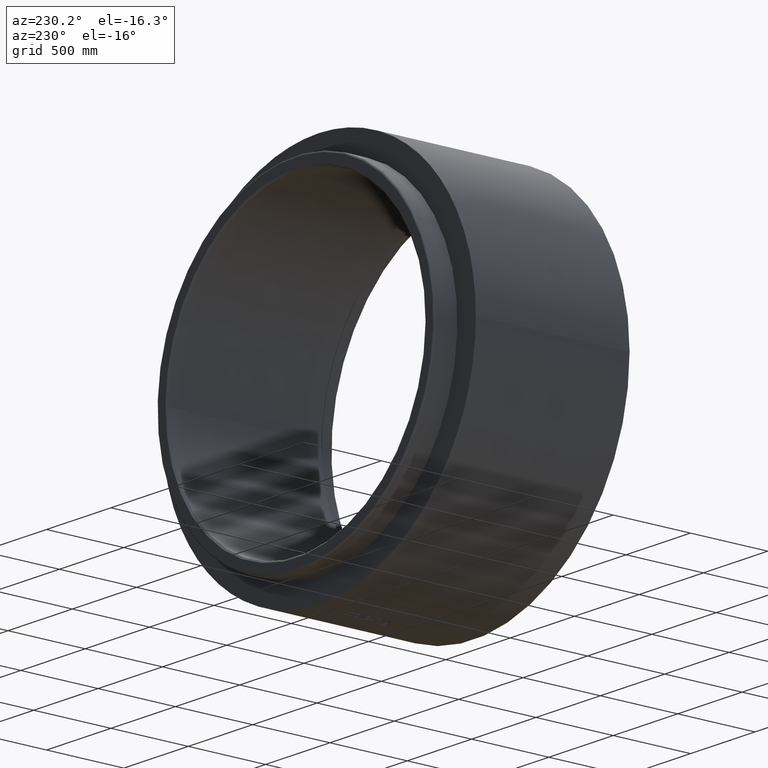
[diagram: clean part render]
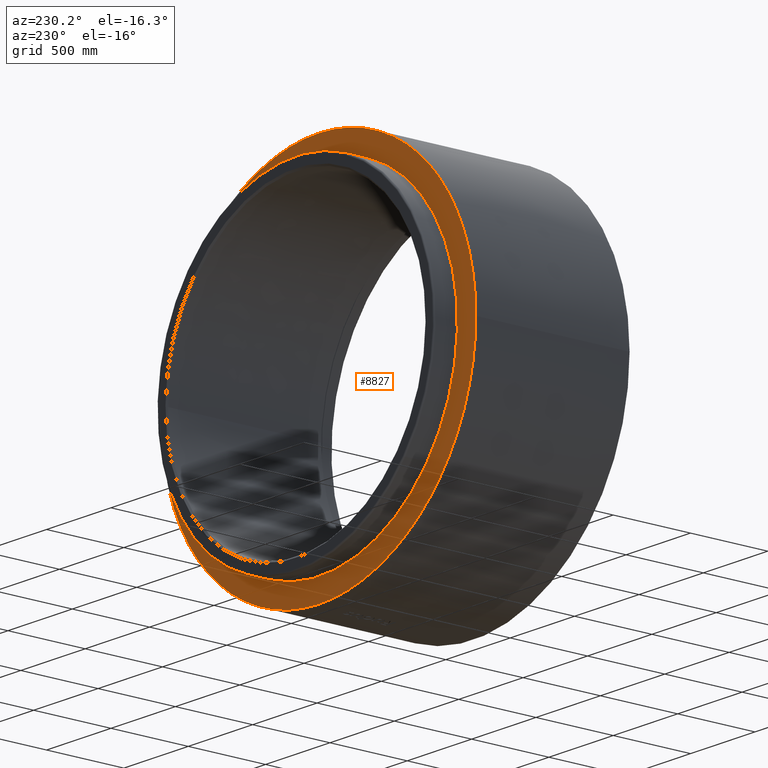
[diagram: same view with one face highlighted and labeled with its STEP entity id]
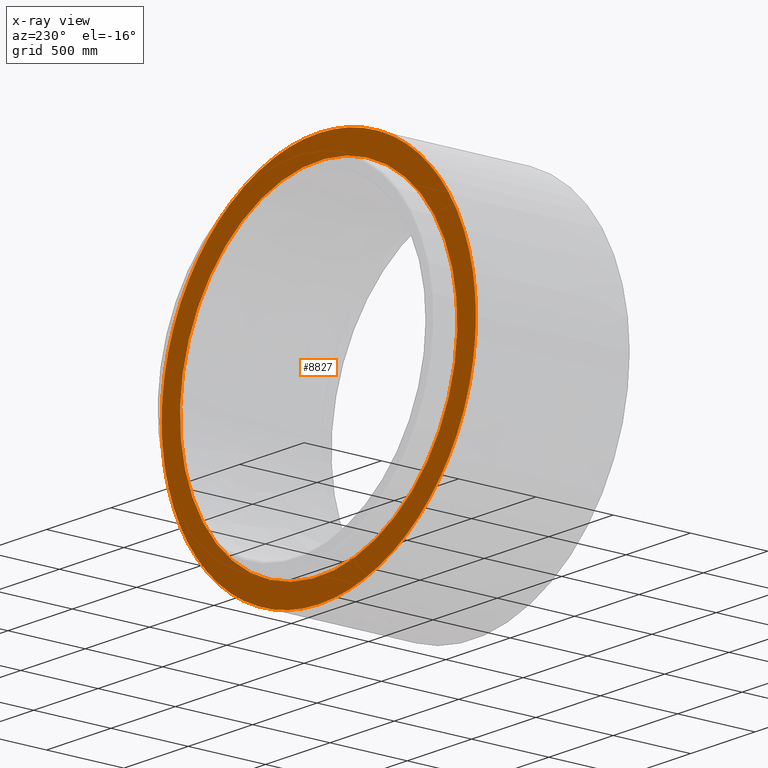
[diagram: x-ray of the same camera — body ghosted, the highlighted face saturated]
A machine part, auxiliary view. The second image highlights one B-rep face of the part: STEP entity #8827.
The next image is the same camera in x-ray: the body ghosted, the highlighted face saturated — about 0% of this face is hidden behind the body in this view.
In plain terms, the highlighted planar face has unit normal (0, 1, 0).
Its self-contained STEP definition (entity closure, byte-faithful):
#48 = CARTESIAN_POINT ( 'NONE',  ( -395.8754158492759530, 1153.987372525587034, 849.9999999999996589 ) ) ;
#83 = EDGE_CURVE ( 'NONE', #19981, #12855, #16625, .T. ) ;
#109 = VERTEX_POINT ( 'NONE', #5220 ) ;
#136 = CIRCLE ( 'NONE', #18513, 1220.000000000000000 ) ;
#140 = VERTEX_POINT ( 'NONE', #21071 ) ;
#276 = CARTESIAN_POINT ( 'NONE',  ( -343.8634925574635304, 1170.537440018978259, 850.0000000000001137 ) ) ;
#337 = B_SPLINE_CURVE_WITH_KNOTS ( 'NONE', 3,
 ( #17559, #20778, #14001, #5262, #20891, #19509, #7097, #5150, #1593, #14115, #15612, #21114, #3317, #10311, #12384, #19395 ),
 .UNSPECIFIED., .F., .F.,
 ( 4, 2, 2, 2, 2, 2, 2, 4 ),
 ( 3.211195586637952903, 3.243659481103999376, 3.259891428337022834, 3.268007401953534341, 3.276123375570045848, 3.341051164502137460, 3.405978953434229073, 3.470906742366320685 ),
 .UNSPECIFIED. ) ;
#374 = AXIS2_PLACEMENT_3D ( 'NONE', #19717, #18105, #2597 ) ;
#398 = CARTESIAN_POINT ( 'NONE',  ( -1081.203955377469583, -565.5653435448837172, 849.9999999999998863 ) ) ;
#420 = ORIENTED_EDGE ( 'NONE', *, *, #21334, .F. ) ;
#482 = AXIS2_PLACEMENT_3D ( 'NONE', #22455, #5214, #8211 ) ;
#542 = CARTESIAN_POINT ( 'NONE',  ( 0.0000000000000000000, 0.0000000000000000000, 850.0000000000000000 ) ) ;
#558 = CARTESIAN_POINT ( 'NONE',  ( -486.9908703716928926, -1118.796647094154196, 850.0000000000001137 ) ) ;
#695 = EDGE_CURVE ( 'NONE', #9754, #11871, #21005, .T. ) ;
#916 = VERTEX_POINT ( 'NONE', #11654 ) ;
#1001 = DIRECTION ( 'NONE',  ( -0.7822983126862211867, 0.6229039652854132525, 0.0000000000000000000 ) ) ;
#1063 = CARTESIAN_POINT ( 'NONE',  ( -1070.843168858291619, -584.5467540834797546, 850.0000000000001137 ) ) ;
#1066 = CARTESIAN_POINT ( 'NONE',  ( 343.8634925957753126, -1170.537440007723490, 850.0000000000001137 ) ) ;
#1395 = CARTESIAN_POINT ( 'NONE',  ( 584.5467540815928942, -1070.843168859321622, 850.0000000000001137 ) ) ;
#1432 = CARTESIAN_POINT ( 'NONE',  ( 385.4940052209549322, 1157.545166577661348, 850.0000000000000000 ) ) ;
#1593 = CARTESIAN_POINT ( 'NONE',  ( 1099.528587927771468, -528.6214959908409128, 850.0000000000000000 ) ) ;
#1652 = CARTESIAN_POINT ( 'NONE',  ( 0.0000000000000000000, 0.0000000000000000000, 850.0000000000000000 ) ) ;
#2006 = CARTESIAN_POINT ( 'NONE',  ( -1164.243732215775026, -364.7668868244443274, 849.9999999999997726 ) ) ;
#2088 = CIRCLE ( 'NONE', #9799, 1077.000000000000227 ) ;
#2090 = CARTESIAN_POINT ( 'NONE',  ( 1070.843168970104671, -584.5467538786475643, 850.0000000000001137 ) ) ;
#2258 = CARTESIAN_POINT ( 'NONE',  ( 1170.537440020091708, 343.8634925536730975, 850.0000000000001137 ) ) ;
#2273 = B_SPLINE_CURVE_WITH_KNOTS ( 'NONE', 3,
 ( #19834, #14558, #6052, #12714, #11101, #18002, #20069, #9260, #9032 ),
 .UNSPECIFIED., .F., .F.,
 ( 4, 2, 1, 2, 4 ),
 ( 7.028952977437310068, 7.094146350864786399, 7.159339724292262730, 7.224533097719739061, 7.289726471147215392 ),
 .UNSPECIFIED. ) ;
#2597 = DIRECTION ( 'NONE',  ( 1.000000000000000000, 0.0000000000000000000, 0.0000000000000000000 ) ) ;
#2606 = CARTESIAN_POINT ( 'NONE',  ( 1091.228714113956357, 545.9760882551044006, 850.0000000000002274 ) ) ;
#2702 = VERTEX_POINT ( 'NONE', #6711 ) ;
#2792 = DIRECTION ( 'NONE',  ( -0.0000000000000000000, -0.0000000000000000000, -1.000000000000000000 ) ) ;
#2950 = EDGE_CURVE ( 'NONE', #4442, #18491, #10368, .T. ) ;
#2986 = EDGE_CURVE ( 'NONE', #15515, #10251, #15162, .T. ) ;
#2996 = CARTESIAN_POINT ( 'NONE',  ( 2.220446049250313081E-13, 1220.000000000000000, 850.0000000000001137 ) ) ;
#3034 = CARTESIAN_POINT ( 'NONE',  ( -1170.537440015501943, -343.8634925692969659, 850.0000000000001137 ) ) ;
#3055 = CARTESIAN_POINT ( 'NONE',  ( 0.0000000000000000000, 0.0000000000000000000, 850.0000000000000000 ) ) ;
#3115 = CARTESIAN_POINT ( 'NONE',  ( 546.0418383356737877, -1091.199003939527984, 850.0000000000003411 ) ) ;
#3154 = CARTESIAN_POINT ( 'NONE',  ( 364.7162013462530012, 1164.259346336537646, 850.0000000000001137 ) ) ;
#3199 = AXIS2_PLACEMENT_3D ( 'NONE', #12087, #3241, #22654 ) ;
#3241 = DIRECTION ( 'NONE',  ( -0.0000000000000000000, -0.0000000000000000000, -1.000000000000000000 ) ) ;
#3317 = CARTESIAN_POINT ( 'NONE',  ( 1143.400454152125121, -426.0275104759683700, 850.0000000000000000 ) ) ;
#3452 = VERTEX_POINT ( 'NONE', #18415 ) ;
#3737 = DIRECTION ( 'NONE',  ( -0.0000000000000000000, -0.0000000000000000000, -1.000000000000000000 ) ) ;
#3955 = AXIS2_PLACEMENT_3D ( 'NONE', #3055, #22019, #13295 ) ;
#3972 = CARTESIAN_POINT ( 'NONE',  ( -343.8634925574635304, 1170.537440018978259, 850.0000000000001137 ) ) ;
#3979 = CARTESIAN_POINT ( 'NONE',  ( 1170.537440020091708, 343.8634925536730975, 850.0000000000001137 ) ) ;
#4060 = EDGE_CURVE ( 'NONE', #15515, #4442, #14055, .T. ) ;
#4154 = AXIS2_PLACEMENT_3D ( 'NONE', #9385, #13074, #14684 ) ;
#4442 = VERTEX_POINT ( 'NONE', #12252 ) ;
#4563 = DIRECTION ( 'NONE',  ( -0.0000000000000000000, -0.0000000000000000000, -1.000000000000000000 ) ) ;
#4584 = VERTEX_POINT ( 'NONE', #3034 ) ;
#4592 = CARTESIAN_POINT ( 'NONE',  ( -1070.843168876829395, 584.5467540495197909, 850.0000000000001137 ) ) ;
#4607 = CARTESIAN_POINT ( 'NONE',  ( 0.0000000000000000000, 0.0000000000000000000, 850.0000000000000000 ) ) ;
#4664 = DIRECTION ( 'NONE',  ( 0.0000000000000000000, 0.0000000000000000000, -1.000000000000000000 ) ) ;
#4765 = CARTESIAN_POINT ( 'NONE',  ( 584.5467540429940527, 1070.843168880391886, 850.0000000000001137 ) ) ;
#4824 = EDGE_CURVE ( 'NONE', #18596, #7807, #337, .T. ) ;
#5150 = CARTESIAN_POINT ( 'NONE',  ( 1098.339108393015294, -531.0886419547695141, 850.0000000000000000 ) ) ;
#5214 = DIRECTION ( 'NONE',  ( -0.0000000000000000000, -0.0000000000000000000, -1.000000000000000000 ) ) ;
#5220 = CARTESIAN_POINT ( 'NONE',  ( -842.5352827630604224, 670.8675706123901819, 850.0000000000001137 ) ) ;
#5262 = CARTESIAN_POINT ( 'NONE',  ( 1088.631529921142828, -550.7348208264235154, 850.0000000000000000 ) ) ;
#5373 = DIRECTION ( 'NONE',  ( 1.000000000000000000, 0.0000000000000000000, 0.0000000000000000000 ) ) ;
#5391 = VERTEX_POINT ( 'NONE', #8956 ) ;
#5403 = AXIS2_PLACEMENT_3D ( 'NONE', #9825, #4664, #1001 ) ;
#5524 = VERTEX_POINT ( 'NONE', #4592 ) ;
#5554 = CARTESIAN_POINT ( 'NONE',  ( -403.6422295716476469, 1151.293518235846250, 849.9999999999998863 ) ) ;
#5607 = CARTESIAN_POINT ( 'NONE',  ( -343.8634925539323604, -1170.537440020015765, 850.0000000000001137 ) ) ;
#5672 = B_SPLINE_CURVE_WITH_KNOTS ( 'NONE', 3,
 ( #2258, #6051, #9259, #21903, #14557, #18347, #19954, #2606, #11219, #18229 ),
 .UNSPECIFIED., .F., .F.,
 ( 4, 2, 2, 2, 4 ),
 ( 4.165104421393467149, 4.230297292318827118, 4.295490163244187976, 4.360683034169547945, 4.425875905094907914 ),
 .UNSPECIFIED. ) ;
#6051 = CARTESIAN_POINT ( 'NONE',  ( 1164.385501670125223, 364.8029729144413977, 850.0000000000000000 ) ) ;
#6052 = CARTESIAN_POINT ( 'NONE',  ( -1091.223327805774488, 545.9867198710090861, 850.0000000000002274 ) ) ;
#6077 = VERTEX_POINT ( 'NONE', #9333 ) ;
#6154 = CIRCLE ( 'NONE', #5403, 1077.000000000000227 ) ;
#6250 = CIRCLE ( 'NONE', #374, 1220.000000000000000 ) ;
#6299 = VERTEX_POINT ( 'NONE', #2996 ) ;
#6412 = ORIENTED_EDGE ( 'NONE', *, *, #695, .F. ) ;
#6489 = CARTESIAN_POINT ( 'NONE',  ( 343.8634925590142188, 1170.537440018522602, 850.0000000000001137 ) ) ;
#6563 = CARTESIAN_POINT ( 'NONE',  ( 506.4396375887013733, -1109.929830902791764, 850.0000000000000000 ) ) ;
#6600 = CARTESIAN_POINT ( 'NONE',  ( 546.3218657890065515, 1091.053857009613694, 849.9999999999997726 ) ) ;
#6608 = DIRECTION ( 'NONE',  ( 1.000000000000000000, 0.0000000000000000000, 0.0000000000000000000 ) ) ;
#6641 = ORIENTED_EDGE ( 'NONE', *, *, #9751, .F. ) ;
#6655 = DIRECTION ( 'NONE',  ( -0.0000000000000000000, -0.0000000000000000000, -1.000000000000000000 ) ) ;
#6674 = DIRECTION ( 'NONE',  ( -0.0000000000000000000, -0.0000000000000000000, -1.000000000000000000 ) ) ;
#6711 = CARTESIAN_POINT ( 'NONE',  ( -862.6702730475877843, 862.6702730475881253, 850.0000000000001137 ) ) ;
#6745 = ORIENTED_EDGE ( 'NONE', *, *, #4824, .T. ) ;
#6763 = EDGE_CURVE ( 'NONE', #11758, #140, #9519, .T. ) ;
#6787 = CARTESIAN_POINT ( 'NONE',  ( 364.6001881048777022, -1164.445079062128116, 850.0000000000002274 ) ) ;
#6941 = CARTESIAN_POINT ( 'NONE',  ( -546.3204589063923322, 1091.054527738492652, 850.0000000000001137 ) ) ;
#6971 = ORIENTED_EDGE ( 'NONE', *, *, #17016, .T. ) ;
#7056 = CARTESIAN_POINT ( 'NONE',  ( -401.0538848659221003, 1152.197778754652290, 849.9999999999992042 ) ) ;
#7097 = CARTESIAN_POINT ( 'NONE',  ( 1095.942189876141356, -536.0176488782342403, 849.9999999999998863 ) ) ;
#7192 = EDGE_LOOP ( 'NONE', ( #420, #13822, #6971, #19991, #7694, #22379, #6412, #12067, #16428, #14817, #22671, #20944, #12970, #13649, #6745, #9954, #15820, #9026, #15630, #22276, #16877, #6641, #17821, #9628 ) ) ;
#7281 = CARTESIAN_POINT ( 'NONE',  ( -385.5075941440224483, 1157.502097591270740, 849.9999999999998863 ) ) ;
#7308 = ORIENTED_EDGE ( 'NONE', *, *, #13206, .T. ) ;
#7617 = CARTESIAN_POINT ( 'NONE',  ( -6.383782391594650107E-13, -1220.000000000000000, 850.0000000000001137 ) ) ;
#7633 = CARTESIAN_POINT ( 'NONE',  ( -1167.463269152678549, -354.3271117967074133, 849.9999999999998863 ) ) ;
#7678 = CARTESIAN_POINT ( 'NONE',  ( -364.8337780864375759, -1164.376451229721170, 850.0000000000001137 ) ) ;
#7694 = ORIENTED_EDGE ( 'NONE', *, *, #12899, .F. ) ;
#7807 = VERTEX_POINT ( 'NONE', #16280 ) ;
#8060 = CARTESIAN_POINT ( 'NONE',  ( -1153.960595475847640, -395.9819359444106226, 850.0000000000003411 ) ) ;
#8063 = CARTESIAN_POINT ( 'NONE',  ( 516.3770208304157450, -1105.341789822885858, 850.0000000000002274 ) ) ;
#8140 = EDGE_CURVE ( 'NONE', #9856, #18491, #5672, .T. ) ;
#8156 = DIRECTION ( 'NONE',  ( 0.0000000000000000000, 0.0000000000000000000, 1.000000000000000000 ) ) ;
#8199 = DIRECTION ( 'NONE',  ( 1.000000000000000000, 4.440892098500626162E-15, 0.0000000000000000000 ) ) ;
#8211 = DIRECTION ( 'NONE',  ( 1.000000000000000000, -2.664535259100375697E-15, 0.0000000000000000000 ) ) ;
#8373 = FACE_BOUND ( 'NONE', #13318, .T. ) ;
#8488 = DIRECTION ( 'NONE',  ( 1.000000000000000000, 0.0000000000000000000, 0.0000000000000000000 ) ) ;
#8827 = ADVANCED_FACE ( 'NONE', ( #8373, #15397 ), #22506, .T. ) ;
#8845 = DIRECTION ( 'NONE',  ( 1.000000000000000000, 0.0000000000000000000, 0.0000000000000000000 ) ) ;
#8939 = CARTESIAN_POINT ( 'NONE',  ( 842.5352827630603088, -670.8675706123898408, 850.0000000000001137 ) ) ;
#8956 = CARTESIAN_POINT ( 'NONE',  ( -1170.537440018529651, 343.8634925589910267, 850.0000000000001137 ) ) ;
#9005 = CARTESIAN_POINT ( 'NONE',  ( -1109.753773078928589, -507.2578412354933448, 849.9999999999996589 ) ) ;
#9026 = ORIENTED_EDGE ( 'NONE', *, *, #8140, .T. ) ;
#9032 = CARTESIAN_POINT ( 'NONE',  ( -1170.537440018529651, 343.8634925589910267, 850.0000000000001137 ) ) ;
#9149 = EDGE_CURVE ( 'NONE', #9856, #19677, #136, .T. ) ;
#9259 = CARTESIAN_POINT ( 'NONE',  ( 1157.689170855649309, 385.5196019174380240, 849.9999999999998863 ) ) ;
#9260 = CARTESIAN_POINT ( 'NONE',  ( -1164.383575403739314, 364.8095293870022715, 850.0000000000001137 ) ) ;
#9333 = CARTESIAN_POINT ( 'NONE',  ( 343.8634925957753126, -1170.537440007723490, 850.0000000000001137 ) ) ;
#9385 = CARTESIAN_POINT ( 'NONE',  ( 0.0000000000000000000, 0.0000000000000000000, 850.0000000000000000 ) ) ;
#9519 = CIRCLE ( 'NONE', #22357, 1220.000000000000000 ) ;
#9628 = ORIENTED_EDGE ( 'NONE', *, *, #83, .T. ) ;
#9719 = EDGE_CURVE ( 'NONE', #17834, #10633, #18856, .T. ) ;
#9751 = EDGE_CURVE ( 'NONE', #6299, #10251, #16165, .T. ) ;
#9754 = VERTEX_POINT ( 'NONE', #11614 ) ;
#9777 = CARTESIAN_POINT ( 'NONE',  ( 446.3071973183047021, -1135.640103303026308, 850.0000000000003411 ) ) ;
#9799 = AXIS2_PLACEMENT_3D ( 'NONE', #16608, #18097, #20390 ) ;
#9815 = CIRCLE ( 'NONE', #13121, 1220.000000000000000 ) ;
#9825 = CARTESIAN_POINT ( 'NONE',  ( 0.0000000000000000000, 0.0000000000000000000, 850.0000000000001137 ) ) ;
#9848 = EDGE_CURVE ( 'NONE', #18596, #17834, #6250, .T. ) ;
#9856 = VERTEX_POINT ( 'NONE', #3979 ) ;
#9924 = CARTESIAN_POINT ( 'NONE',  ( 426.8686891350942574, 1143.091862888636115, 850.0000000000003411 ) ) ;
#9954 = ORIENTED_EDGE ( 'NONE', *, *, #12394, .F. ) ;
#10134 = DIRECTION ( 'NONE',  ( -0.0000000000000000000, -0.0000000000000000000, -1.000000000000000000 ) ) ;
#10205 = DIRECTION ( 'NONE',  ( -0.0000000000000000000, -0.0000000000000000000, -1.000000000000000000 ) ) ;
#10251 = VERTEX_POINT ( 'NONE', #22393 ) ;
#10311 = CARTESIAN_POINT ( 'NONE',  ( 1157.797521225636274, -385.1893296165324045, 849.9999999999998863 ) ) ;
#10368 = CIRCLE ( 'NONE', #482, 1220.000000000000000 ) ;
#10569 = EDGE_CURVE ( 'NONE', #916, #5391, #20911, .T. ) ;
#10633 = VERTEX_POINT ( 'NONE', #17004 ) ;
#10682 = CIRCLE ( 'NONE', #15474, 1220.000000000000000 ) ;
#10724 = CARTESIAN_POINT ( 'NONE',  ( 0.0000000000000000000, 0.0000000000000000000, 850.0000000000000000 ) ) ;
#10779 = AXIS2_PLACEMENT_3D ( 'NONE', #20783, #8156, #22172 ) ;
#10806 = B_SPLINE_CURVE_WITH_KNOTS ( 'NONE', 3,
 ( #16412, #14463, #14349, #16300, #558, #14575, #21346, #11121, #7678, #5607 ),
 .UNSPECIFIED., .F., .F.,
 ( 4, 2, 2, 2, 4 ),
 ( 1.301257809289184220, 1.366448336607778424, 1.431638863926372629, 1.496829391244967056, 1.562019918563561260 ),
 .UNSPECIFIED. ) ;
#10842 = CARTESIAN_POINT ( 'NONE',  ( -1159.193972621028252, -380.3903885648174423, 850.0000000000001137 ) ) ;
#10962 = CARTESIAN_POINT ( 'NONE',  ( 1070.843168858698618, 584.5467540827341963, 850.0000000000001137 ) ) ;
#11066 = CIRCLE ( 'NONE', #19884, 1220.000000000000000 ) ;
#11101 = CARTESIAN_POINT ( 'NONE',  ( -1127.669387852914497, 467.0858645790809760, 850.0000000000000000 ) ) ;
#11104 = AXIS2_PLACEMENT_3D ( 'NONE', #22327, #10134, #8199 ) ;
#11121 = CARTESIAN_POINT ( 'NONE',  ( -385.5727568345206464, -1157.671764484690812, 850.0000000000000000 ) ) ;
#11219 = CARTESIAN_POINT ( 'NONE',  ( 1081.308864998806939, 565.3731445657136874, 850.0000000000002274 ) ) ;
#11398 = AXIS2_PLACEMENT_3D ( 'NONE', #4607, #6655, #8488 ) ;
#11518 = CARTESIAN_POINT ( 'NONE',  ( 476.4774962938797103, -1123.157329697114619, 850.0000000000001137 ) ) ;
#11614 = CARTESIAN_POINT ( 'NONE',  ( -862.6702730472040912, -862.6702730479718184, 850.0000000000001137 ) ) ;
#11654 = CARTESIAN_POINT ( 'NONE',  ( -1220.000000000000000, 2.817076697897991853E-13, 850.0000000000001137 ) ) ;
#11718 = DIRECTION ( 'NONE',  ( -0.0000000000000000000, -0.0000000000000000000, -1.000000000000000000 ) ) ;
#11758 = VERTEX_POINT ( 'NONE', #7617 ) ;
#11767 = DIRECTION ( 'NONE',  ( 1.000000000000000000, 0.0000000000000000000, 0.0000000000000000000 ) ) ;
#11871 = VERTEX_POINT ( 'NONE', #16419 ) ;
#11892 = AXIS2_PLACEMENT_3D ( 'NONE', #13896, #10205, #17229 ) ;
#12000 = CARTESIAN_POINT ( 'NONE',  ( 447.2501704828359834, 1135.268857001967717, 850.0000000000001137 ) ) ;
#12067 = ORIENTED_EDGE ( 'NONE', *, *, #14024, .F. ) ;
#12087 = CARTESIAN_POINT ( 'NONE',  ( 0.0000000000000000000, 0.0000000000000000000, 850.0000000000000000 ) ) ;
#12252 = CARTESIAN_POINT ( 'NONE',  ( 862.6702730475869885, 862.6702730475886938, 850.0000000000001137 ) ) ;
#12384 = CARTESIAN_POINT ( 'NONE',  ( 1164.442939234392725, -364.6074714838029536, 850.0000000000009095 ) ) ;
#12394 = EDGE_CURVE ( 'NONE', #19677, #7807, #9815, .T. ) ;
#12455 = CARTESIAN_POINT ( 'NONE',  ( -354.3067083426103068, 1167.469263608700430, 850.0000000000000000 ) ) ;
#12714 = CARTESIAN_POINT ( 'NONE',  ( -1109.983849895896583, 506.7581516714943177, 850.0000000000000000 ) ) ;
#12855 = VERTEX_POINT ( 'NONE', #13405 ) ;
#12899 = EDGE_CURVE ( 'NONE', #4584, #916, #14964, .T. ) ;
#12908 = CIRCLE ( 'NONE', #20594, 1220.000000000000000 ) ;
#12970 = ORIENTED_EDGE ( 'NONE', *, *, #9719, .F. ) ;
#13074 = DIRECTION ( 'NONE',  ( -0.0000000000000000000, -0.0000000000000000000, -1.000000000000000000 ) ) ;
#13121 = AXIS2_PLACEMENT_3D ( 'NONE', #542, #15017, #6608 ) ;
#13206 = EDGE_CURVE ( 'NONE', #109, #14395, #6154, .T. ) ;
#13295 = DIRECTION ( 'NONE',  ( 1.000000000000000000, 5.329070518200751394E-15, 0.0000000000000000000 ) ) ;
#13318 = EDGE_LOOP ( 'NONE', ( #7308, #14268 ) ) ;
#13351 = CARTESIAN_POINT ( 'NONE',  ( -1135.246869637981035, -447.3049018163634969, 850.0000000000001137 ) ) ;
#13405 = CARTESIAN_POINT ( 'NONE',  ( -584.5467540763365832, 1070.843168862190851, 850.0000000000001137 ) ) ;
#13467 = CARTESIAN_POINT ( 'NONE',  ( 862.6702730475877843, -862.6702730475878980, 850.0000000000001137 ) ) ;
#13572 = CARTESIAN_POINT ( 'NONE',  ( 385.1823888186708587, -1157.799982492610297, 850.0000000000001137 ) ) ;
#13608 = EDGE_CURVE ( 'NONE', #6077, #10633, #21448, .T. ) ;
#13649 = ORIENTED_EDGE ( 'NONE', *, *, #9848, .F. ) ;
#13721 = DIRECTION ( 'NONE',  ( -0.0000000000000000000, -0.0000000000000000000, -1.000000000000000000 ) ) ;
#13778 = DIRECTION ( 'NONE',  ( 1.000000000000000000, 0.0000000000000000000, 0.0000000000000000000 ) ) ;
#13779 = DIRECTION ( 'NONE',  ( 1.000000000000000000, 0.0000000000000000000, 0.0000000000000000000 ) ) ;
#13822 = ORIENTED_EDGE ( 'NONE', *, *, #15180, .F. ) ;
#13896 = CARTESIAN_POINT ( 'NONE',  ( 0.0000000000000000000, 0.0000000000000000000, 850.0000000000000000 ) ) ;
#13917 = CARTESIAN_POINT ( 'NONE',  ( 0.0000000000000000000, 0.0000000000000000000, 850.0000000000000000 ) ) ;
#13959 = CARTESIAN_POINT ( 'NONE',  ( -364.7255093899742064, 1164.256482100195399, 850.0000000000000000 ) ) ;
#14001 = CARTESIAN_POINT ( 'NONE',  ( 1081.162508982433792, -565.3368187094548603, 850.0000000000001137 ) ) ;
#14024 = EDGE_CURVE ( 'NONE', #3452, #9754, #21936, .T. ) ;
#14055 = CIRCLE ( 'NONE', #4154, 1220.000000000000000 ) ;
#14072 = CARTESIAN_POINT ( 'NONE',  ( -584.5467540763365832, 1070.843168862190851, 850.0000000000001137 ) ) ;
#14115 = CARTESIAN_POINT ( 'NONE',  ( 1110.153355822056938, -506.3934791305004524, 850.0000000000001137 ) ) ;
#14258 = AXIS2_PLACEMENT_3D ( 'NONE', #15620, #11718, #13778 ) ;
#14268 = ORIENTED_EDGE ( 'NONE', *, *, #20131, .T. ) ;
#14349 = CARTESIAN_POINT ( 'NONE',  ( -546.0259410981304882, -1091.203455719011345, 849.9999999999997726 ) ) ;
#14395 = VERTEX_POINT ( 'NONE', #8939 ) ;
#14463 = CARTESIAN_POINT ( 'NONE',  ( -565.4012941682636892, -1081.293499859292751, 849.9999999999998863 ) ) ;
#14557 = CARTESIAN_POINT ( 'NONE',  ( 1135.449494560811445, 446.7890894946363574, 850.0000000000000000 ) ) ;
#14558 = CARTESIAN_POINT ( 'NONE',  ( -1081.305587176674408, 565.3791496766975797, 850.0000000000000000 ) ) ;
#14575 = CARTESIAN_POINT ( 'NONE',  ( -446.8779195881774058, -1135.414535888780165, 850.0000000000001137 ) ) ;
#14684 = DIRECTION ( 'NONE',  ( 1.000000000000000000, -1.776356839400250465E-15, 0.0000000000000000000 ) ) ;
#14817 = ORIENTED_EDGE ( 'NONE', *, *, #6763, .F. ) ;
#14964 = CIRCLE ( 'NONE', #3955, 1220.000000000000000 ) ;
#15017 = DIRECTION ( 'NONE',  ( -0.0000000000000000000, -0.0000000000000000000, -1.000000000000000000 ) ) ;
#15081 = CARTESIAN_POINT ( 'NONE',  ( 521.3394301164570379, -1103.010039523778687, 850.0000000000001137 ) ) ;
#15162 = B_SPLINE_CURVE_WITH_KNOTS ( 'NONE', 3,
 ( #4765, #20731, #6600, #17286, #17173, #12000, #9924, #20613, #1432, #3154, #17400, #6489 ),
 .UNSPECIFIED., .F., .F.,
 ( 4, 2, 2, 2, 2, 4 ),
 ( 5.120133071175931860, 5.185042970246750649, 5.249952869317569437, 5.314862768388388226, 5.347317717923798064, 5.379772667459207014 ),
 .UNSPECIFIED. ) ;
#15180 = EDGE_CURVE ( 'NONE', #5524, #2702, #21546, .T. ) ;
#15397 = FACE_OUTER_BOUND ( 'NONE', #7192, .T. ) ;
#15474 = AXIS2_PLACEMENT_3D ( 'NONE', #10724, #3737, #17748 ) ;
#15515 = VERTEX_POINT ( 'NONE', #17330 ) ;
#15612 = CARTESIAN_POINT ( 'NONE',  ( 1119.025256360330104, -486.4668176588307915, 850.0000000000001137 ) ) ;
#15620 = CARTESIAN_POINT ( 'NONE',  ( 0.0000000000000000000, 0.0000000000000000000, 850.0000000000000000 ) ) ;
#15630 = ORIENTED_EDGE ( 'NONE', *, *, #2950, .F. ) ;
#15683 = CARTESIAN_POINT ( 'NONE',  ( -426.8893747996664843, 1143.083972443693938, 850.0000000000002274 ) ) ;
#15820 = ORIENTED_EDGE ( 'NONE', *, *, #9149, .F. ) ;
#15834 = CARTESIAN_POINT ( 'NONE',  ( 0.0000000000000000000, 0.0000000000000000000, 850.0000000000000000 ) ) ;
#15908 = CARTESIAN_POINT ( 'NONE',  ( -507.2588425101031362, 1109.753401068535595, 850.0000000000001137 ) ) ;
#16142 = CARTESIAN_POINT ( 'NONE',  ( -1157.473490823288330, -385.5936143021313001, 850.0000000000001137 ) ) ;
#16165 = CIRCLE ( 'NONE', #11398, 1220.000000000000000 ) ;
#16280 = CARTESIAN_POINT ( 'NONE',  ( 1170.537440020332951, -343.8634925528523922, 850.0000000000006821 ) ) ;
#16300 = CARTESIAN_POINT ( 'NONE',  ( -506.8207312865275753, -1109.955034241291060, 850.0000000000000000 ) ) ;
#16412 = CARTESIAN_POINT ( 'NONE',  ( -584.5467540862024407, -1070.843168856805505, 850.0000000000001137 ) ) ;
#16419 = CARTESIAN_POINT ( 'NONE',  ( -1070.843168858291619, -584.5467540834797546, 850.0000000000001137 ) ) ;
#16428 = ORIENTED_EDGE ( 'NONE', *, *, #18261, .T. ) ;
#16578 = CARTESIAN_POINT ( 'NONE',  ( 0.0000000000000000000, 0.0000000000000000000, 850.0000000000000000 ) ) ;
#16608 = CARTESIAN_POINT ( 'NONE',  ( 0.0000000000000000000, 0.0000000000000000000, 850.0000000000001137 ) ) ;
#16625 = B_SPLINE_CURVE_WITH_KNOTS ( 'NONE', 3,
 ( #276, #12455, #13959, #17405, #7281, #20850, #48, #7056, #5554, #15683, #19129, #19351, #15908, #6941, #20960, #14072 ),
 .UNSPECIFIED., .F., .F.,
 ( 4, 2, 2, 2, 2, 2, 2, 4 ),
 ( 6.075055461860851658, 6.107513345840055230, 6.123742287829657016, 6.131856758824457465, 6.139971229819258802, 6.204886997777666835, 6.269802765736075756, 6.334718533694483789 ),
 .UNSPECIFIED. ) ;
#16796 = CARTESIAN_POINT ( 'NONE',  ( -1170.537440015501943, -343.8634925692969659, 850.0000000000001137 ) ) ;
#16877 = ORIENTED_EDGE ( 'NONE', *, *, #2986, .T. ) ;
#17004 = CARTESIAN_POINT ( 'NONE',  ( 584.5467540815928942, -1070.843168859321622, 850.0000000000001137 ) ) ;
#17016 = EDGE_CURVE ( 'NONE', #5524, #5391, #2273, .T. ) ;
#17173 = CARTESIAN_POINT ( 'NONE',  ( 487.4444256058816336, 1118.600035981245128, 850.0000000000000000 ) ) ;
#17229 = DIRECTION ( 'NONE',  ( 1.000000000000000000, 8.881784197001252323E-16, 0.0000000000000000000 ) ) ;
#17286 = CARTESIAN_POINT ( 'NONE',  ( 507.2571835905205262, 1109.754192447994001, 850.0000000000001137 ) ) ;
#17330 = CARTESIAN_POINT ( 'NONE',  ( 584.5467540429940527, 1070.843168880391886, 850.0000000000001137 ) ) ;
#17400 = CARTESIAN_POINT ( 'NONE',  ( 354.3022453304575379, 1167.470574824395726, 850.0000000000002274 ) ) ;
#17405 = CARTESIAN_POINT ( 'NONE',  ( -380.3167000008469927, 1159.218099064867602, 849.9999999999998863 ) ) ;
#17559 = CARTESIAN_POINT ( 'NONE',  ( 1070.843168970104671, -584.5467538786475643, 850.0000000000001137 ) ) ;
#17748 = DIRECTION ( 'NONE',  ( 1.000000000000000000, 0.0000000000000000000, 0.0000000000000000000 ) ) ;
#17821 = ORIENTED_EDGE ( 'NONE', *, *, #22225, .F. ) ;
#17834 = VERTEX_POINT ( 'NONE', #13467 ) ;
#17858 = CARTESIAN_POINT ( 'NONE',  ( -1118.593780944538139, -487.4577934985064758, 850.0000000000000000 ) ) ;
#18002 = CARTESIAN_POINT ( 'NONE',  ( -1143.214707211575842, 426.5301640503407157, 850.0000000000001137 ) ) ;
#18087 = CARTESIAN_POINT ( 'NONE',  ( -1091.058866426362101, -546.3116195589899462, 850.0000000000002274 ) ) ;
#18097 = DIRECTION ( 'NONE',  ( 0.0000000000000000000, 0.0000000000000000000, -1.000000000000000000 ) ) ;
#18105 = DIRECTION ( 'NONE',  ( -0.0000000000000000000, -0.0000000000000000000, -1.000000000000000000 ) ) ;
#18204 = CARTESIAN_POINT ( 'NONE',  ( -1152.171146041897373, -401.1583318735499688, 850.0000000000003411 ) ) ;
#18229 = CARTESIAN_POINT ( 'NONE',  ( 1070.843168858698618, 584.5467540827341963, 850.0000000000001137 ) ) ;
#18261 = EDGE_CURVE ( 'NONE', #3452, #140, #10806, .T. ) ;
#18347 = CARTESIAN_POINT ( 'NONE',  ( 1118.834735655971372, 486.9033565159673458, 850.0000000000001137 ) ) ;
#18415 = CARTESIAN_POINT ( 'NONE',  ( -584.5467540862024407, -1070.843168856805505, 850.0000000000001137 ) ) ;
#18491 = VERTEX_POINT ( 'NONE', #10962 ) ;
#18513 = AXIS2_PLACEMENT_3D ( 'NONE', #1652, #13721, #11767 ) ;
#18596 = VERTEX_POINT ( 'NONE', #2090 ) ;
#18634 = CARTESIAN_POINT ( 'NONE',  ( 501.4609086144909043, -1112.187940829982153, 849.9999999999997726 ) ) ;
#18792 = B_SPLINE_CURVE_WITH_KNOTS ( 'NONE', 3,
 ( #16796, #7633, #2006, #10842, #16142, #8060, #18204, #22078, #13351, #17858, #9005, #18087, #398, #1063 ),
 .UNSPECIFIED., .F., .F.,
 ( 4, 2, 2, 2, 2, 2, 4 ),
 ( 0.3473351875111300724, 0.3798048954730212090, 0.3960397494539668606, 0.4122746034349124566, 0.4772140193586947854, 0.5421534352824770586, 0.6070928512062594429 ),
 .UNSPECIFIED. ) ;
#18793 = CARTESIAN_POINT ( 'NONE',  ( 0.0000000000000000000, 0.0000000000000000000, 850.0000000000000000 ) ) ;
#18856 = CIRCLE ( 'NONE', #11892, 1220.000000000000000 ) ;
#19129 = CARTESIAN_POINT ( 'NONE',  ( -447.2644114169835348, 1135.263149252709582, 849.9999999999997726 ) ) ;
#19351 = CARTESIAN_POINT ( 'NONE',  ( -487.4491529053535714, 1118.597877386197979, 850.0000000000003411 ) ) ;
#19395 = CARTESIAN_POINT ( 'NONE',  ( 1170.537440020332951, -343.8634925528523922, 850.0000000000006821 ) ) ;
#19509 = CARTESIAN_POINT ( 'NONE',  ( 1094.734751707064106, -538.4794867266774645, 850.0000000000000000 ) ) ;
#19677 = VERTEX_POINT ( 'NONE', #21010 ) ;
#19717 = CARTESIAN_POINT ( 'NONE',  ( 0.0000000000000000000, 0.0000000000000000000, 850.0000000000000000 ) ) ;
#19834 = CARTESIAN_POINT ( 'NONE',  ( -1070.843168876829395, 584.5467540495197909, 850.0000000000001137 ) ) ;
#19884 = AXIS2_PLACEMENT_3D ( 'NONE', #13917, #6674, #8845 ) ;
#19954 = CARTESIAN_POINT ( 'NONE',  ( 1109.991656148846459, 506.7411969755114569, 849.9999999999998863 ) ) ;
#19981 = VERTEX_POINT ( 'NONE', #3972 ) ;
#19991 = ORIENTED_EDGE ( 'NONE', *, *, #10569, .F. ) ;
#20069 = CARTESIAN_POINT ( 'NONE',  ( -1157.685465150228538, 385.5309191110785036, 850.0000000000002274 ) ) ;
#20103 = AXIS2_PLACEMENT_3D ( 'NONE', #16578, #2792, #13779 ) ;
#20131 = EDGE_CURVE ( 'NONE', #14395, #109, #2088, .T. ) ;
#20390 = DIRECTION ( 'NONE',  ( -0.7822983126862211867, 0.6229039652854132525, 0.0000000000000000000 ) ) ;
#20594 = AXIS2_PLACEMENT_3D ( 'NONE', #18793, #4563, #22243 ) ;
#20613 = CARTESIAN_POINT ( 'NONE',  ( 395.8600295182189370, 1154.041447392012515, 849.9999999999998863 ) ) ;
#20691 = CARTESIAN_POINT ( 'NONE',  ( 486.4947972490324446, -1118.855210010944120, 849.9999999999998863 ) ) ;
#20731 = CARTESIAN_POINT ( 'NONE',  ( 565.5737814158281935, 1081.199349660891130, 849.9999999999997726 ) ) ;
#20778 = CARTESIAN_POINT ( 'NONE',  ( 1076.062505977225328, -574.9847019694350365, 850.0000000000004547 ) ) ;
#20783 = CARTESIAN_POINT ( 'NONE',  ( 954.4039414771900738, -759.9428376482042040, 850.0000000000001137 ) ) ;
#20850 = CARTESIAN_POINT ( 'NONE',  ( -393.2846243440024523, 1154.872947534544437, 849.9999999999998863 ) ) ;
#20891 = CARTESIAN_POINT ( 'NONE',  ( 1091.091035200272245, -545.8457895071941266, 849.9999999999998863 ) ) ;
#20911 = CIRCLE ( 'NONE', #14258, 1220.000000000000000 ) ;
#20944 = ORIENTED_EDGE ( 'NONE', *, *, #13608, .T. ) ;
#20960 = CARTESIAN_POINT ( 'NONE',  ( -565.5723775384838063, 1081.200115952099395, 849.9999999999998863 ) ) ;
#20999 = DIRECTION ( 'NONE',  ( -0.0000000000000000000, -0.0000000000000000000, -1.000000000000000000 ) ) ;
#21005 = CIRCLE ( 'NONE', #11104, 1220.000000000000000 ) ;
#21010 = CARTESIAN_POINT ( 'NONE',  ( 1220.000000000000000, 0.0000000000000000000, 850.0000000000001137 ) ) ;
#21044 = EDGE_CURVE ( 'NONE', #6077, #11758, #11066, .T. ) ;
#21071 = CARTESIAN_POINT ( 'NONE',  ( -343.8634925539323604, -1170.537440020015765, 850.0000000000001137 ) ) ;
#21114 = CARTESIAN_POINT ( 'NONE',  ( 1135.648819856068030, -446.2838375487232838, 849.9999999999998863 ) ) ;
#21237 = EDGE_CURVE ( 'NONE', #4584, #11871, #18792, .T. ) ;
#21334 = EDGE_CURVE ( 'NONE', #2702, #12855, #10682, .T. ) ;
#21346 = CARTESIAN_POINT ( 'NONE',  ( -426.5948307217153683, -1143.190814186306170, 850.0000000000001137 ) ) ;
#21448 = B_SPLINE_CURVE_WITH_KNOTS ( 'NONE', 3,
 ( #1066, #6787, #13572, #22301, #9777, #11518, #20691, #18634, #6563, #8063, #15081, #3115, #22081, #1395 ),
 .UNSPECIFIED., .F., .F.,
 ( 4, 2, 2, 2, 2, 2, 4 ),
 ( 2.256320414114579176, 2.321220057441167217, 2.386119700767755258, 2.418569522431049723, 2.434794433262696511, 2.451019344094343300, 2.515918987420930897 ),
 .UNSPECIFIED. ) ;
#21546 = CIRCLE ( 'NONE', #3199, 1220.000000000000000 ) ;
#21903 = CARTESIAN_POINT ( 'NONE',  ( 1143.221172927460202, 426.5126625107743052, 850.0000000000000000 ) ) ;
#21936 = CIRCLE ( 'NONE', #20103, 1220.000000000000000 ) ;
#22019 = DIRECTION ( 'NONE',  ( -0.0000000000000000000, -0.0000000000000000000, -1.000000000000000000 ) ) ;
#22078 = CARTESIAN_POINT ( 'NONE',  ( -1143.059975301481018, -426.9520712402806453, 850.0000000000003411 ) ) ;
#22081 = CARTESIAN_POINT ( 'NONE',  ( 565.4616361970024627, -1081.260562850810402, 850.0000000000002274 ) ) ;
#22172 = DIRECTION ( 'NONE',  ( 0.7822983126862211867, -0.6229039652854132525, 0.0000000000000000000 ) ) ;
#22225 = EDGE_CURVE ( 'NONE', #19981, #6299, #12908, .T. ) ;
#22243 = DIRECTION ( 'NONE',  ( 1.000000000000000000, 0.0000000000000000000, 0.0000000000000000000 ) ) ;
#22276 = ORIENTED_EDGE ( 'NONE', *, *, #4060, .F. ) ;
#22301 = CARTESIAN_POINT ( 'NONE',  ( 426.0358908444629833, -1143.397485379303589, 849.9999999999997726 ) ) ;
#22327 = CARTESIAN_POINT ( 'NONE',  ( 0.0000000000000000000, 0.0000000000000000000, 850.0000000000000000 ) ) ;
#22357 = AXIS2_PLACEMENT_3D ( 'NONE', #15834, #20999, #5373 ) ;
#22379 = ORIENTED_EDGE ( 'NONE', *, *, #21237, .T. ) ;
#22393 = CARTESIAN_POINT ( 'NONE',  ( 343.8634925590142188, 1170.537440018522602, 850.0000000000001137 ) ) ;
#22455 = CARTESIAN_POINT ( 'NONE',  ( 0.0000000000000000000, 0.0000000000000000000, 850.0000000000000000 ) ) ;
#22506 = PLANE ( 'NONE',  #10779 ) ;
#22654 = DIRECTION ( 'NONE',  ( 1.000000000000000000, 0.0000000000000000000, 0.0000000000000000000 ) ) ;
#22671 = ORIENTED_EDGE ( 'NONE', *, *, #21044, .F. ) ;